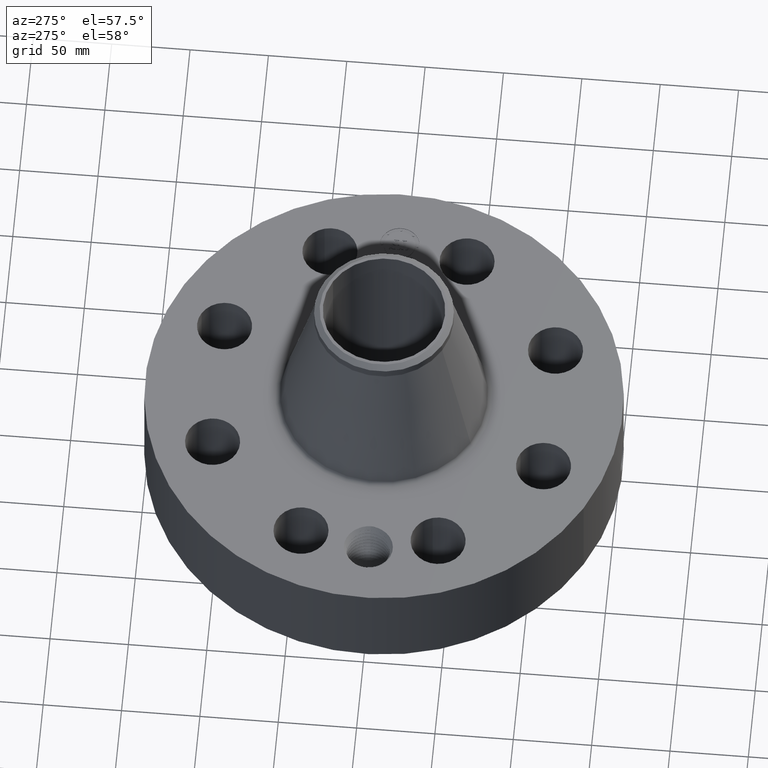
[diagram: clean part render]
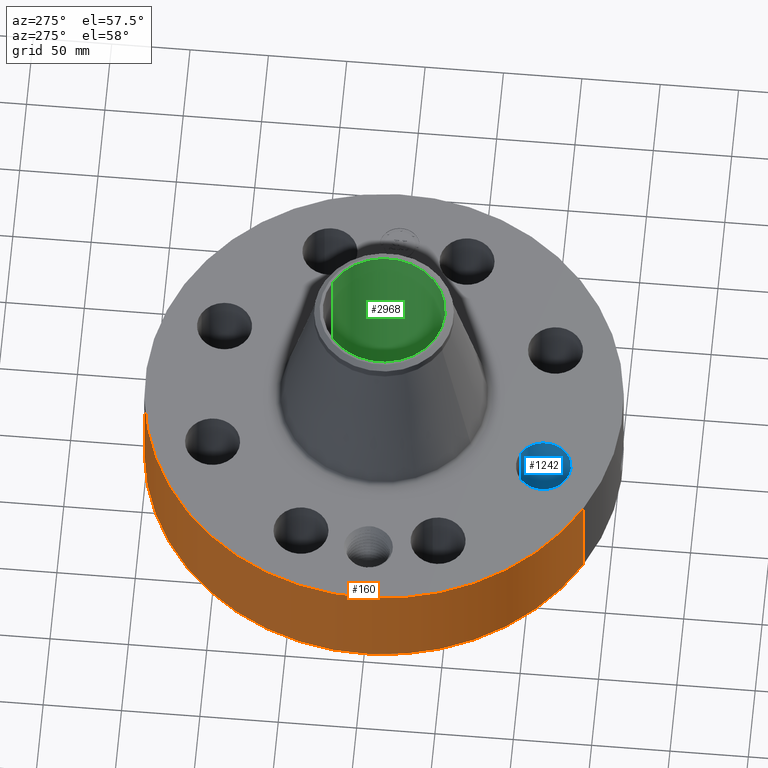
[diagram: same view with three faces highlighted in distinct colors, each labeled with its STEP entity id]
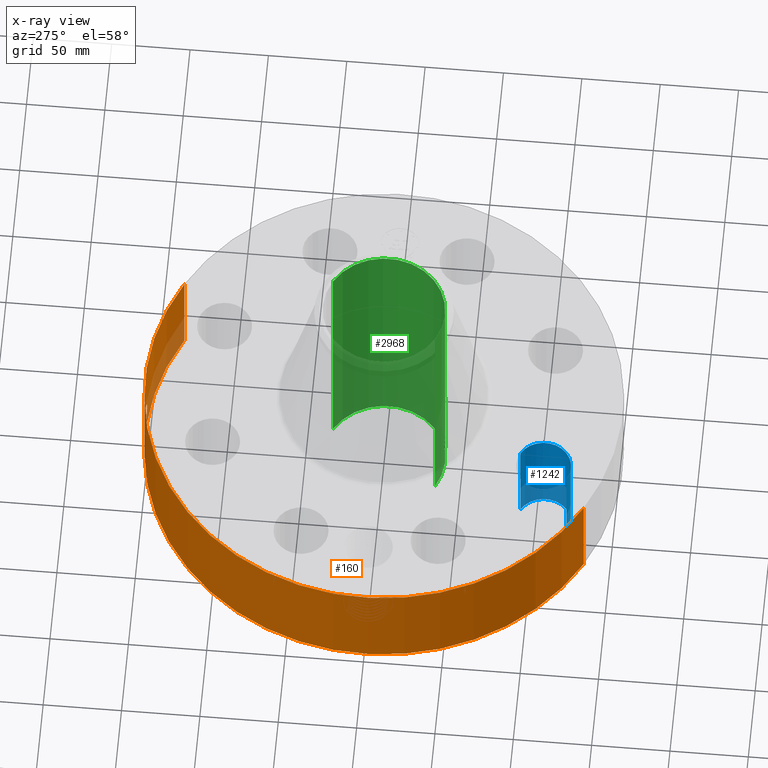
[diagram: x-ray of the same camera — body ghosted, the three highlighted faces saturated]
A machine part, auxiliary view with three faces highlighted in distinct colors.
The next image is the same camera in x-ray (body ghosted, the three faces saturated) — at least one of them is partly hidden behind the body in this view.
Their STEP definitions:

[orange] entity #160 — the highlighted cylindrical surface (partial cylindrical patch) has radius 152.4 mm, axis along (0, 0, -1).
#38=AXIS2_PLACEMENT_3D('Cylinder Axis2P3D',#35,#36,#37) ;
#42=AXIS2_PLACEMENT_3D('Circle Axis2P3D',#40,#41,$) ;
#58=AXIS2_PLACEMENT_3D('Circle Axis2P3D',#56,#57,$) ;
#35=CARTESIAN_POINT('Axis2P3D Location',(0.,0.,3.43500000001)) ;
#40=CARTESIAN_POINT('Axis2P3D Location',(0.,0.,0.250000000001)) ;
#44=CARTESIAN_POINT('Vertex',(-2.87655323164,-5.26549537136,0.250000000001)) ;
#46=CARTESIAN_POINT('Vertex',(2.87655323164,5.26549537136,0.250000000001)) ;
#49=CARTESIAN_POINT('Line Origine',(-2.87655323164,-5.26549537136,1.56000000001)) ;
#53=CARTESIAN_POINT('Vertex',(-2.87655323164,-5.26549537136,2.87000000001)) ;
#56=CARTESIAN_POINT('Axis2P3D Location',(0.,0.,2.87000000001)) ;
#60=CARTESIAN_POINT('Vertex',(2.87655323164,5.26549537136,2.87000000001)) ;
#63=CARTESIAN_POINT('Line Origine',(2.87655323164,5.26549537136,1.56000000001)) ;
#75=CARTESIAN_POINT('Control Point',(-0.0620294013027,5.99967935424,1.28863374187)) ;
#76=CARTESIAN_POINT('Control Point',(-0.0418037851129,5.99988846256,1.29223902252)) ;
#77=CARTESIAN_POINT('Control Point',(-0.0212622128558,5.99999750311,1.29407680657)) ;
#78=CARTESIAN_POINT('Control Point',(-0.00071668568368,5.99999995722,1.29411849777)) ;
#79=CARTESIAN_POINT('Vertex',(-0.0620105319595,5.99967981312,1.28863740427)) ;
#81=CARTESIAN_POINT('Vertex',(-0.000716507124831,5.99999995724,1.2941185081)) ;
#85=CARTESIAN_POINT('Control Point',(-0.0620104179879,5.99967955047,1.28863679864)) ;
#86=CARTESIAN_POINT('Control Point',(-0.0999592678039,5.99928732552,1.28330765069)) ;
#87=CARTESIAN_POINT('Control Point',(-0.13703323767,5.99853114007,1.27111314227)) ;
#88=CARTESIAN_POINT('Control Point',(-0.170989225715,5.99756306219,1.2530260437)) ;
#89=CARTESIAN_POINT('Vertex',(-0.170989225715,5.99756306219,1.2530260437)) ;
#93=CARTESIAN_POINT('Control Point',(-0.0295352196009,5.99992730548,0.531080988079)) ;
#94=CARTESIAN_POINT('Control Point',(-0.0846745731228,5.99965587671,0.538131857158)) ;
#95=CARTESIAN_POINT('Control Point',(-0.138214731682,5.99875889121,0.555569703526)) ;
#96=CARTESIAN_POINT('Control Point',(-0.187352122131,5.99732239974,0.582824954164)) ;
#97=CARTESIAN_POINT('Control Point',(-0.258352875126,5.99461263626,0.640930942429)) ;
#98=CARTESIAN_POINT('Control Point',(-0.309097739749,5.99207742216,0.714968914099)) ;
#99=CARTESIAN_POINT('Control Point',(-0.32580580689,5.99117148458,0.746398901821)) ;
#100=CARTESIAN_POINT('Control Point',(-0.358917505906,5.98929296898,0.829513569665)) ;
#101=CARTESIAN_POINT('Control Point',(-0.368320828413,5.98867477845,0.918173860859)) ;
#102=CARTESIAN_POINT('Control Point',(-0.365106914864,5.98888227385,0.971925729254)) ;
#103=CARTESIAN_POINT('Control Point',(-0.341823092602,5.99034291636,1.07305905255)) ;
#104=CARTESIAN_POINT('Control Point',(-0.287331106007,5.99321318576,1.16076666708)) ;
#105=CARTESIAN_POINT('Control Point',(-0.253998850419,5.99479985363,1.19857683483)) ;
#106=CARTESIAN_POINT('Control Point',(-0.214595044139,5.99631986974,1.22979883746)) ;
#107=CARTESIAN_POINT('Control Point',(-0.170989225715,5.99756306219,1.2530260437)) ;
#108=CARTESIAN_POINT('Vertex',(-0.0295352196009,5.99992730548,0.531080988079)) ;
#112=CARTESIAN_POINT('Control Point',(-0.0295352196009,5.99992730548,0.531080988079)) ;
#113=CARTESIAN_POINT('Control Point',(-0.0196835201685,5.99997580142,0.530859411968)) ;
#114=CARTESIAN_POINT('Control Point',(-0.00982899637296,6.00000000449,0.530957428553)) ;
#115=CARTESIAN_POINT('Control Point',(2.72878354323E-006,6.00000000002,0.531374667805)) ;
#116=CARTESIAN_POINT('Vertex',(2.72878353964E-006,6.00000000002,0.531374667805)) ;
#120=CARTESIAN_POINT('Control Point',(0.193999690977,5.99686285654,0.584894722229)) ;
#121=CARTESIAN_POINT('Control Point',(0.134720295073,5.99878055664,0.552475021077)) ;
#122=CARTESIAN_POINT('Control Point',(0.0678020792624,5.99999996919,0.534251942867)) ;
#123=CARTESIAN_POINT('Control Point',(2.72878353257E-006,6.00000000002,0.531374667805)) ;
#124=CARTESIAN_POINT('Vertex',(0.193999690977,5.99686285654,0.584894722229)) ;
#128=CARTESIAN_POINT('Control Point',(0.193999690977,5.99686285654,0.584894722229)) ;
#129=CARTESIAN_POINT('Control Point',(0.251859413814,5.99499108315,0.616538007915)) ;
#130=CARTESIAN_POINT('Control Point',(0.303627825115,5.99261782233,0.659308829213)) ;
#131=CARTESIAN_POINT('Control Point',(0.346323547213,5.9901188201,0.712241413736)) ;
#132=CARTESIAN_POINT('Control Point',(0.39215945572,5.98719743365,0.80548840988)) ;
#133=CARTESIAN_POINT('Control Point',(0.404127731994,5.98637322028,0.906648452596)) ;
#134=CARTESIAN_POINT('Control Point',(0.40395651689,5.98638508904,0.942172161262)) ;
#135=CARTESIAN_POINT('Control Point',(0.393352499155,5.98711362657,1.02479378326)) ;
#136=CARTESIAN_POINT('Control Point',(0.360172895375,5.98923070751,1.10097852838)) ;
#137=CARTESIAN_POINT('Control Point',(0.33424139791,5.99079355044,1.14100482192)) ;
#138=CARTESIAN_POINT('Control Point',(0.26302575248,5.99456901644,1.22050217253)) ;
#139=CARTESIAN_POINT('Control Point',(0.170276281525,5.99794363217,1.27121609432)) ;
#140=CARTESIAN_POINT('Control Point',(0.114329592527,5.99932885512,1.28932921698)) ;
#141=CARTESIAN_POINT('Control Point',(0.0567531952405,6.00000024467,1.29693656263)) ;
#142=CARTESIAN_POINT('Control Point',(-2.58579355287E-005,5.99999999997,1.29415298435)) ;
#143=CARTESIAN_POINT('Vertex',(-2.58579355257E-005,5.99999999997,1.29415298435)) ;
#147=CARTESIAN_POINT('Control Point',(-0.000716507113863,5.99999995724,1.29411850809)) ;
#148=CARTESIAN_POINT('Control Point',(-0.000371206085579,5.99999999848,1.29413605376)) ;
#149=CARTESIAN_POINT('Control Point',(-2.58579423373E-005,5.99999999997,1.29415298435)) ;
#36=DIRECTION('Axis2P3D Direction',(0.,0.,-0.0393700787402)) ;
#37=DIRECTION('Axis2P3D XDirection',(0.0188750212049,0.0345504945626,0.)) ;
#41=DIRECTION('Axis2P3D Direction',(0.,0.,-0.0393700787402)) ;
#50=DIRECTION('Vector Direction',(0.,0.,-0.0393700787402)) ;
#57=DIRECTION('Axis2P3D Direction',(0.,0.,-0.0393700787402)) ;
#64=DIRECTION('Vector Direction',(0.,0.,-0.0393700787402)) ;
#51=VECTOR('Line Direction',#50,0.0393700787402) ;
#65=VECTOR('Line Direction',#64,0.0393700787402) ;
#69=ORIENTED_EDGE('',*,*,#48,.F.) ;
#70=ORIENTED_EDGE('',*,*,#55,.T.) ;
#71=ORIENTED_EDGE('',*,*,#62,.T.) ;
#72=ORIENTED_EDGE('',*,*,#67,.F.) ;
#152=ORIENTED_EDGE('',*,*,#83,.F.) ;
#153=ORIENTED_EDGE('',*,*,#91,.T.) ;
#154=ORIENTED_EDGE('',*,*,#110,.F.) ;
#155=ORIENTED_EDGE('',*,*,#118,.T.) ;
#156=ORIENTED_EDGE('',*,*,#126,.F.) ;
#157=ORIENTED_EDGE('',*,*,#145,.T.) ;
#158=ORIENTED_EDGE('',*,*,#150,.F.) ;
#159=FACE_BOUND('',#151,.T.) ;
#160=ADVANCED_FACE('PartBody',(#73,#159),#39,.T.) ;
#74=B_SPLINE_CURVE_WITH_KNOTS('',3,(#75,#76,#77,#78),.UNSPECIFIED.,.F.,.U.,(4,4),(4.24233758942,6.52167903671),.UNSPECIFIED.) ;
#84=B_SPLINE_CURVE_WITH_KNOTS('',3,(#85,#86,#87,#88),.UNSPECIFIED.,.F.,.U.,(4,4),(0.,4.30575151399),.UNSPECIFIED.) ;
#92=B_SPLINE_CURVE_WITH_KNOTS('',5,(#93,#94,#95,#96,#97,#98,#99,#100,#101,#102,#103,#104,#105,#106,#107),.UNSPECIFIED.,.F.,.U.,(6,3,3,3,6),(0.,9.66128471243,16.0502596952,25.8410470488,35.0566930295),.UNSPECIFIED.) ;
#111=B_SPLINE_CURVE_WITH_KNOTS('',3,(#112,#113,#114,#115),.UNSPECIFIED.,.F.,.U.,(4,4),(0.,1.02753024697),.UNSPECIFIED.) ;
#119=B_SPLINE_CURVE_WITH_KNOTS('',3,(#120,#121,#122,#123),.UNSPECIFIED.,.F.,.U.,(4,4),(0.,7.08582496085),.UNSPECIFIED.) ;
#127=B_SPLINE_CURVE_WITH_KNOTS('',5,(#128,#129,#130,#131,#132,#133,#134,#135,#136,#137,#138,#139,#140,#141,#142),.UNSPECIFIED.,.F.,.U.,(6,3,3,3,6),(0.,11.5268793065,17.6888368937,26.0538803268,36.6670615974),.UNSPECIFIED.) ;
#146=B_SPLINE_CURVE_WITH_KNOTS('',2,(#147,#148,#149),.UNSPECIFIED.,.F.,.U.,(3,3),(1.07551920359,1.10134029396),.UNSPECIFIED.) ;
#43=CIRCLE('generated circle',#42,6.00000000002) ;
#59=CIRCLE('generated circle',#58,6.00000000002) ;
#39=CYLINDRICAL_SURFACE('generated cylinder',#38,6.00000000002) ;
#48=EDGE_CURVE('',#45,#47,#43,.T.) ;
#55=EDGE_CURVE('',#45,#54,#52,.F.) ;
#62=EDGE_CURVE('',#54,#61,#59,.T.) ;
#67=EDGE_CURVE('',#47,#61,#66,.F.) ;
#83=EDGE_CURVE('',#80,#82,#74,.T.) ;
#91=EDGE_CURVE('',#80,#90,#84,.T.) ;
#110=EDGE_CURVE('',#109,#90,#92,.T.) ;
#118=EDGE_CURVE('',#109,#117,#111,.T.) ;
#126=EDGE_CURVE('',#125,#117,#119,.T.) ;
#145=EDGE_CURVE('',#125,#144,#127,.T.) ;
#150=EDGE_CURVE('',#82,#144,#146,.T.) ;
#68=EDGE_LOOP('',(#69,#70,#71,#72)) ;
#151=EDGE_LOOP('',(#152,#153,#154,#155,#156,#157,#158)) ;
#73=FACE_OUTER_BOUND('',#68,.T.) ;
#52=LINE('Line',#49,#51) ;
#66=LINE('Line',#63,#65) ;
#45=VERTEX_POINT('',#44) ;
#47=VERTEX_POINT('',#46) ;
#54=VERTEX_POINT('',#53) ;
#61=VERTEX_POINT('',#60) ;
#80=VERTEX_POINT('',#79) ;
#82=VERTEX_POINT('',#81) ;
#90=VERTEX_POINT('',#89) ;
#109=VERTEX_POINT('',#108) ;
#117=VERTEX_POINT('',#116) ;
#125=VERTEX_POINT('',#124) ;
#144=VERTEX_POINT('',#143) ;

[blue] entity #1242 — the highlighted cylindrical surface (edge-blend (fillet) strip) has radius 17.526 mm, axis along (0, -0, -1).
#282=AXIS2_PLACEMENT_3D('Circle Axis2P3D',#280,#281,$) ;
#612=AXIS2_PLACEMENT_3D('Circle Axis2P3D',#610,#611,$) ;
#1224=AXIS2_PLACEMENT_3D('Cylinder Axis2P3D',#1221,#1222,#1223) ;
#280=CARTESIAN_POINT('Axis2P3D Location',(-1.72207544565,-4.15745789632,0.250000000001)) ;
#284=CARTESIAN_POINT('Vertex',(-1.39127182401,-3.55192592861,0.250000000001)) ;
#286=CARTESIAN_POINT('Vertex',(-2.05287906729,-4.76298986402,0.250000000001)) ;
#605=CARTESIAN_POINT('Vertex',(-2.05287906729,-4.76298986402,2.87000000001)) ;
#607=CARTESIAN_POINT('Vertex',(-1.39127182401,-3.55192592861,2.87000000001)) ;
#610=CARTESIAN_POINT('Axis2P3D Location',(-1.72207544565,-4.15745789632,2.87000000001)) ;
#1221=CARTESIAN_POINT('Axis2P3D Location',(-1.72207544565,-4.15745789632,2.86606299214)) ;
#1226=CARTESIAN_POINT('Line Origine',(-1.39127182401,-3.55192592861,1.56000000001)) ;
#1231=CARTESIAN_POINT('Line Origine',(-2.05287906729,-4.76298986402,1.56000000001)) ;
#281=DIRECTION('Axis2P3D Direction',(0.,0.,-0.0393700787402)) ;
#611=DIRECTION('Axis2P3D Direction',(0.,0.,-0.0393700787402)) ;
#1222=DIRECTION('Axis2P3D Direction',(0.,-0.,-0.0393700787402)) ;
#1223=DIRECTION('Axis2P3D XDirection',(-0.0188750212049,-0.0345504945626,0.)) ;
#1227=DIRECTION('Vector Direction',(0.,0.,-0.0393700787402)) ;
#1232=DIRECTION('Vector Direction',(0.,0.,-0.0393700787402)) ;
#1228=VECTOR('Line Direction',#1227,0.0393700787402) ;
#1233=VECTOR('Line Direction',#1232,0.0393700787402) ;
#1237=ORIENTED_EDGE('',*,*,#1230,.F.) ;
#1238=ORIENTED_EDGE('',*,*,#288,.T.) ;
#1239=ORIENTED_EDGE('',*,*,#1235,.T.) ;
#1240=ORIENTED_EDGE('',*,*,#614,.F.) ;
#1242=ADVANCED_FACE('PartBody',(#1241),#1225,.F.) ;
#283=CIRCLE('generated circle',#282,0.690000000003) ;
#613=CIRCLE('generated circle',#612,0.690000000003) ;
#1225=CYLINDRICAL_SURFACE('generated cylinder',#1224,0.690000000003) ;
#288=EDGE_CURVE('',#285,#287,#283,.T.) ;
#614=EDGE_CURVE('',#608,#606,#613,.T.) ;
#1230=EDGE_CURVE('',#285,#608,#1229,.F.) ;
#1235=EDGE_CURVE('',#287,#606,#1234,.F.) ;
#1236=EDGE_LOOP('',(#1237,#1238,#1239,#1240)) ;
#1241=FACE_OUTER_BOUND('',#1236,.T.) ;
#1229=LINE('Line',#1226,#1228) ;
#1234=LINE('Line',#1231,#1233) ;
#285=VERTEX_POINT('',#284) ;
#287=VERTEX_POINT('',#286) ;
#606=VERTEX_POINT('',#605) ;
#608=VERTEX_POINT('',#607) ;

[green] entity #2968 — the highlighted cylindrical surface (partial cylindrical patch) has radius 38.9636 mm, axis along (0, 0, -1).
#2181=AXIS2_PLACEMENT_3D('Circle Axis2P3D',#2179,#2180,$) ;
#2899=AXIS2_PLACEMENT_3D('Cylinder Axis2P3D',#2896,#2897,#2898) ;
#2903=AXIS2_PLACEMENT_3D('Circle Axis2P3D',#2901,#2902,$) ;
#2179=CARTESIAN_POINT('Axis2P3D Location',(0.,0.,0.)) ;
#2183=CARTESIAN_POINT('Vertex',(0.735438776222,1.34621164995,-5.59482469102E-015)) ;
#2185=CARTESIAN_POINT('Vertex',(-0.735438776222,-1.34621164995,-5.59482469102E-015)) ;
#2896=CARTESIAN_POINT('Axis2P3D Location',(0.,0.,3.43500000001)) ;
#2901=CARTESIAN_POINT('Axis2P3D Location',(0.,0.,6.87000000003)) ;
#2905=CARTESIAN_POINT('Vertex',(0.735438776222,1.34621164995,6.87000000003)) ;
#2907=CARTESIAN_POINT('Vertex',(-0.735438776222,-1.34621164995,6.87000000003)) ;
#2910=CARTESIAN_POINT('Line Origine',(0.735438776222,1.34621164995,3.43500000001)) ;
#2915=CARTESIAN_POINT('Line Origine',(-0.735438776222,-1.34621164995,3.43500000001)) ;
#2927=CARTESIAN_POINT('Control Point',(0.164546730355,-1.52514929549,0.850107711515)) ;
#2928=CARTESIAN_POINT('Control Point',(0.153730987741,-1.52631619443,0.830309627459)) ;
#2929=CARTESIAN_POINT('Control Point',(0.139943198898,-1.52770675216,0.812148390872)) ;
#2930=CARTESIAN_POINT('Control Point',(0.123507748963,-1.52917958204,0.796208112038)) ;
#2931=CARTESIAN_POINT('Control Point',(0.0771300553318,-1.53257507292,0.76318734753)) ;
#2932=CARTESIAN_POINT('Control Point',(0.0211174569634,-1.53443807468,0.748997528332)) ;
#2933=CARTESIAN_POINT('Control Point',(-0.0139156713035,-1.53452842349,0.74833651336)) ;
#2934=CARTESIAN_POINT('Control Point',(-0.0704492146731,-1.53291709887,0.760416237492)) ;
#2935=CARTESIAN_POINT('Control Point',(-0.118051609547,-1.52962023944,0.791691344324)) ;
#2936=CARTESIAN_POINT('Control Point',(-0.13508366878,-1.52815406454,0.807020195618)) ;
#2937=CARTESIAN_POINT('Control Point',(-0.174443725803,-1.52429835588,0.8550456468)) ;
#2938=CARTESIAN_POINT('Control Point',(-0.192228358507,-1.52190251018,0.916011178546)) ;
#2939=CARTESIAN_POINT('Control Point',(-0.192989830595,-1.52179279368,0.956827431146)) ;
#2940=CARTESIAN_POINT('Control Point',(-0.183177815634,-1.52313920758,0.995788315648)) ;
#2941=CARTESIAN_POINT('Control Point',(-0.164546730355,-1.52514929549,1.02989228849)) ;
#2942=CARTESIAN_POINT('Vertex',(0.164546730355,-1.52514929549,0.850107711515)) ;
#2944=CARTESIAN_POINT('Vertex',(-0.164546730355,-1.52514929549,1.02989228849)) ;
#2948=CARTESIAN_POINT('Control Point',(-0.164546730355,-1.52514929549,1.02989228849)) ;
#2949=CARTESIAN_POINT('Control Point',(-0.153730987742,-1.52631619443,1.04969037255)) ;
#2950=CARTESIAN_POINT('Control Point',(-0.139943198901,-1.52770675216,1.06785160913)) ;
#2951=CARTESIAN_POINT('Control Point',(-0.123507748953,-1.52917958204,1.08379188798)) ;
#2952=CARTESIAN_POINT('Control Point',(-0.0771300553213,-1.53257507292,1.11681265248)) ;
#2953=CARTESIAN_POINT('Control Point',(-0.0211174569533,-1.53443807468,1.13100247168)) ;
#2954=CARTESIAN_POINT('Control Point',(0.0139156713087,-1.53452842349,1.13166348665)) ;
#2955=CARTESIAN_POINT('Control Point',(0.0704492146865,-1.53291709887,1.11958376251)) ;
#2956=CARTESIAN_POINT('Control Point',(0.118051609565,-1.52962023944,1.08830865567)) ;
#2957=CARTESIAN_POINT('Control Point',(0.135083668776,-1.52815406454,1.07297980439)) ;
#2958=CARTESIAN_POINT('Control Point',(0.174443725801,-1.52429835588,1.02495435321)) ;
#2959=CARTESIAN_POINT('Control Point',(0.192228358505,-1.52190251018,0.963988821464)) ;
#2960=CARTESIAN_POINT('Control Point',(0.192989830592,-1.52179279368,0.923172568852)) ;
#2961=CARTESIAN_POINT('Control Point',(0.183177815631,-1.52313920758,0.884211684355)) ;
#2962=CARTESIAN_POINT('Control Point',(0.164546730355,-1.52514929549,0.850107711515)) ;
#2180=DIRECTION('Axis2P3D Direction',(0.,0.,-0.0393700787402)) ;
#2897=DIRECTION('Axis2P3D Direction',(0.,0.,-0.0393700787402)) ;
#2898=DIRECTION('Axis2P3D XDirection',(-0.0188750212049,-0.0345504945626,0.)) ;
#2902=DIRECTION('Axis2P3D Direction',(0.,0.,-0.0393700787402)) ;
#2911=DIRECTION('Vector Direction',(0.,0.,-0.0393700787402)) ;
#2916=DIRECTION('Vector Direction',(0.,0.,-0.0393700787402)) ;
#2912=VECTOR('Line Direction',#2911,0.0393700787402) ;
#2917=VECTOR('Line Direction',#2916,0.0393700787402) ;
#2921=ORIENTED_EDGE('',*,*,#2909,.F.) ;
#2922=ORIENTED_EDGE('',*,*,#2914,.T.) ;
#2923=ORIENTED_EDGE('',*,*,#2187,.T.) ;
#2924=ORIENTED_EDGE('',*,*,#2919,.F.) ;
#2965=ORIENTED_EDGE('',*,*,#2946,.F.) ;
#2966=ORIENTED_EDGE('',*,*,#2963,.F.) ;
#2967=FACE_BOUND('',#2964,.T.) ;
#2968=ADVANCED_FACE('PartBody',(#2925,#2967),#2900,.F.) ;
#2926=B_SPLINE_CURVE_WITH_KNOTS('',5,(#2927,#2928,#2929,#2930,#2931,#2932,#2933,#2934,#2935,#2936,#2937,#2938,#2939,#2940,#2941),.UNSPECIFIED.,.F.,.U.,(6,3,3,3,6),(0.,4.05727166024,10.1291862374,14.1895477945,21.1785615866),.UNSPECIFIED.) ;
#2947=B_SPLINE_CURVE_WITH_KNOTS('',5,(#2948,#2949,#2950,#2951,#2952,#2953,#2954,#2955,#2956,#2957,#2958,#2959,#2960,#2961,#2962),.UNSPECIFIED.,.F.,.U.,(6,3,3,3,6),(0.,4.0572716598,10.1291862372,14.1895477956,21.1785615868),.UNSPECIFIED.) ;
#2182=CIRCLE('generated circle',#2181,1.53400000001) ;
#2904=CIRCLE('generated circle',#2903,1.53400000001) ;
#2900=CYLINDRICAL_SURFACE('generated cylinder',#2899,1.53400000001) ;
#2187=EDGE_CURVE('',#2184,#2186,#2182,.T.) ;
#2909=EDGE_CURVE('',#2906,#2908,#2904,.T.) ;
#2914=EDGE_CURVE('',#2906,#2184,#2913,.T.) ;
#2919=EDGE_CURVE('',#2908,#2186,#2918,.T.) ;
#2946=EDGE_CURVE('',#2943,#2945,#2926,.T.) ;
#2963=EDGE_CURVE('',#2945,#2943,#2947,.T.) ;
#2920=EDGE_LOOP('',(#2921,#2922,#2923,#2924)) ;
#2964=EDGE_LOOP('',(#2965,#2966)) ;
#2925=FACE_OUTER_BOUND('',#2920,.T.) ;
#2913=LINE('Line',#2910,#2912) ;
#2918=LINE('Line',#2915,#2917) ;
#2184=VERTEX_POINT('',#2183) ;
#2186=VERTEX_POINT('',#2185) ;
#2906=VERTEX_POINT('',#2905) ;
#2908=VERTEX_POINT('',#2907) ;
#2943=VERTEX_POINT('',#2942) ;
#2945=VERTEX_POINT('',#2944) ;